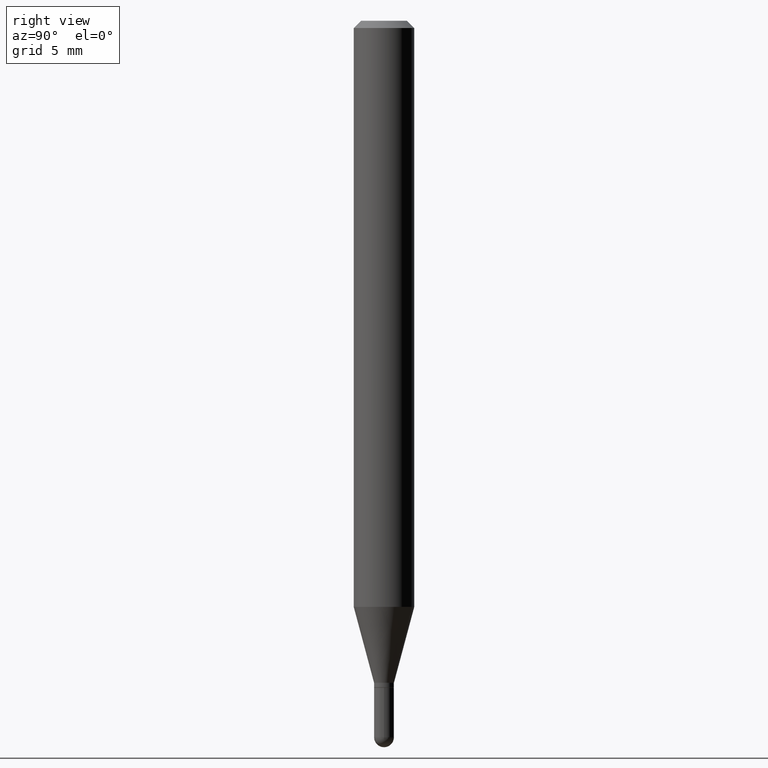
[diagram: clean part render]
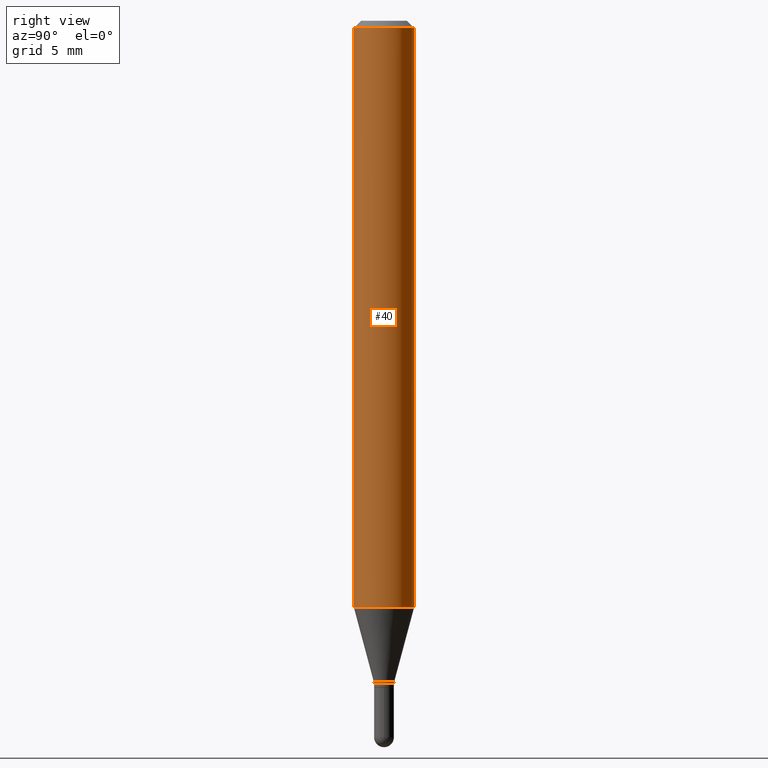
[diagram: same view with one face highlighted and labeled with its STEP entity id]
A machine part, right view. The second image highlights one B-rep face of the part: STEP entity #40.
In plain terms, the highlighted cylindrical surface (edge-blend (fillet) strip) has radius 1.5875 mm, axis along (-0, 0, 1).
Its self-contained STEP definition (entity closure, byte-faithful):
#8 = LINE ( 'NONE', #9, #242 ) ;
#9 = CARTESIAN_POINT ( 'NONE',  ( -4.364351673553916201E-16, -0.06250000000000000000, 2.182339290564098763E-16 ) ) ;
#14 = ORIENTED_EDGE ( 'NONE', *, *, #502, .T. ) ;
#15 = CARTESIAN_POINT ( 'NONE',  ( 4.440892098500920012E-16, 0.06249999999999574646, -1.210253866082108276 ) ) ;
#19 = VERTEX_POINT ( 'NONE', #252 ) ;
#28 = LINE ( 'NONE', #182, #493 ) ;
#29 = EDGE_CURVE ( 'NONE', #19, #289, #8, .T. ) ;
#40 = ADVANCED_FACE ( 'NONE', ( #461 ), #389, .T. ) ;
#44 = DIRECTION ( 'NONE',  ( -6.982962677686265922E-15, -1.000000000000000000, 4.370956789862821150E-15 ) ) ;
#54 = ORIENTED_EDGE ( 'NONE', *, *, #29, .F. ) ;
#69 = DIRECTION ( 'NONE',  ( -6.982962677686265922E-15, -1.000000000000000000, 3.491742864902558020E-15 ) ) ;
#99 = AXIS2_PLACEMENT_3D ( 'NONE', #267, #216, #69 ) ;
#126 = DIRECTION ( 'NONE',  ( -2.445286183513924545E-29, 3.491742864902558020E-15, 1.000000000000000000 ) ) ;
#129 = CIRCLE ( 'NONE', #270, 0.06250000000000000000 ) ;
#144 = DIRECTION ( 'NONE',  ( -2.445286183513924825E-29, 3.491742864902558020E-15, 1.000000000000000000 ) ) ;
#148 = EDGE_CURVE ( 'NONE', #446, #331, #28, .T. ) ;
#157 = EDGE_CURVE ( 'NONE', #289, #331, #305, .T. ) ;
#174 = CARTESIAN_POINT ( 'NONE',  ( 3.667929275270889498E-31, -5.237614297353840235E-17, -0.01500000000000000812 ) ) ;
#175 = ORIENTED_EDGE ( 'NONE', *, *, #157, .F. ) ;
#182 = CARTESIAN_POINT ( 'NONE',  ( 4.440892098500625669E-16, 0.06250000000000000000, -2.182339290564098763E-16 ) ) ;
#216 = DIRECTION ( 'NONE',  ( -2.445286183513924545E-29, 3.491742864902558020E-15, 1.000000000000000000 ) ) ;
#224 = AXIS2_PLACEMENT_3D ( 'NONE', #174, #386, #496 ) ;
#242 = VECTOR ( 'NONE', #144, 39.37007874015748143 ) ;
#252 = CARTESIAN_POINT ( 'NONE',  ( -4.364351673553621857E-16, -0.06250000000000424660, -1.210253866082107610 ) ) ;
#267 = CARTESIAN_POINT ( 'NONE',  ( 0.000000000000000000, 0.000000000000000000, 0.000000000000000000 ) ) ;
#270 = AXIS2_PLACEMENT_3D ( 'NONE', #449, #126, #44 ) ;
#289 = VERTEX_POINT ( 'NONE', #434 ) ;
#292 = ORIENTED_EDGE ( 'NONE', *, *, #148, .T. ) ;
#305 = CIRCLE ( 'NONE', #224, 0.06250000000000000000 ) ;
#331 = VERTEX_POINT ( 'NONE', #506 ) ;
#386 = DIRECTION ( 'NONE',  ( -2.445286183513924545E-29, 3.491742864902558020E-15, 1.000000000000000000 ) ) ;
#389 = CYLINDRICAL_SURFACE ( 'NONE', #99, 0.06250000000000000000 ) ;
#391 = DIRECTION ( 'NONE',  ( -2.445286183513924825E-29, 3.491742864902558020E-15, 1.000000000000000000 ) ) ;
#434 = CARTESIAN_POINT ( 'NONE',  ( -4.364351673553912750E-16, -0.06250000000000005551, -0.01499999999999979128 ) ) ;
#446 = VERTEX_POINT ( 'NONE', #15 ) ;
#449 = CARTESIAN_POINT ( 'NONE',  ( 2.959417057274890367E-29, -4.225895301612936912E-15, -1.210253866082107832 ) ) ;
#461 = FACE_OUTER_BOUND ( 'NONE', #507, .T. ) ;
#493 = VECTOR ( 'NONE', #391, 39.37007874015748143 ) ;
#496 = DIRECTION ( 'NONE',  ( -6.982962677686265922E-15, -1.000000000000000000, 3.483106191921935554E-15 ) ) ;
#502 = EDGE_CURVE ( 'NONE', #19, #446, #129, .T. ) ;
#506 = CARTESIAN_POINT ( 'NONE',  ( 4.440892098500922971E-16, 0.06249999999999995143, -0.01500000000000022669 ) ) ;
#507 = EDGE_LOOP ( 'NONE', ( #14, #292, #175, #54 ) ) ;